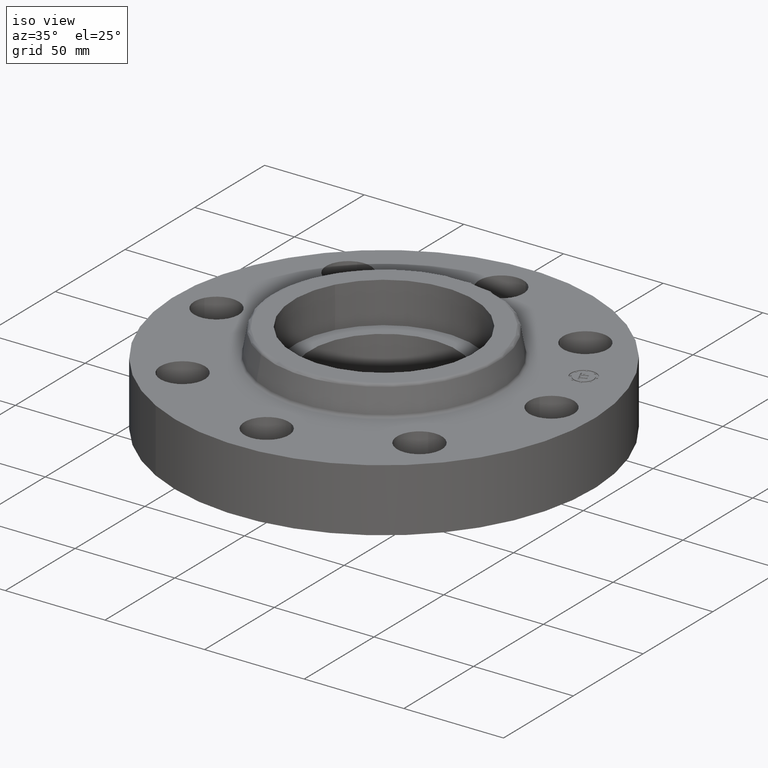
[diagram: clean part render]
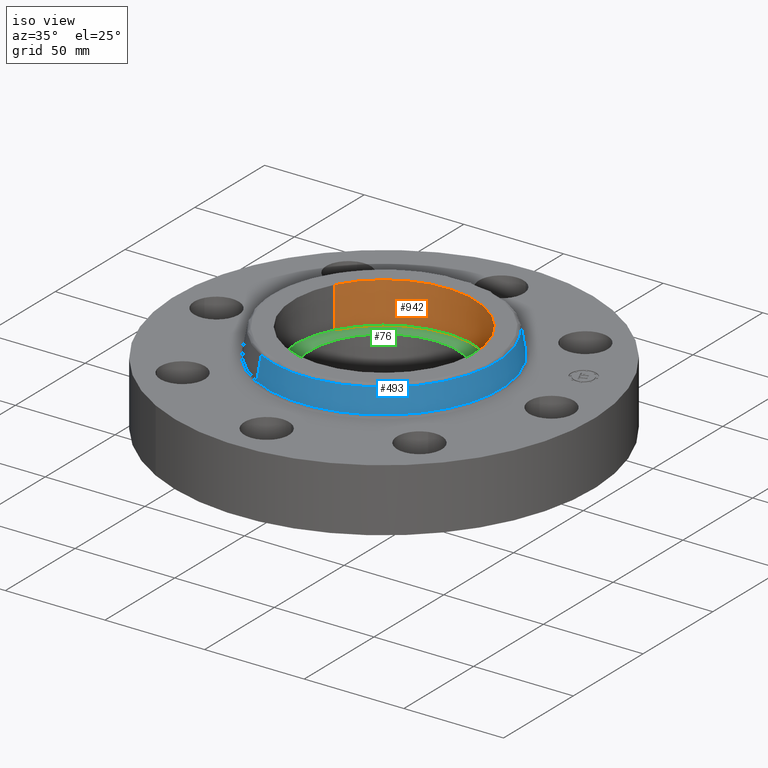
[diagram: same view with three faces highlighted in distinct colors, each labeled with its STEP entity id]
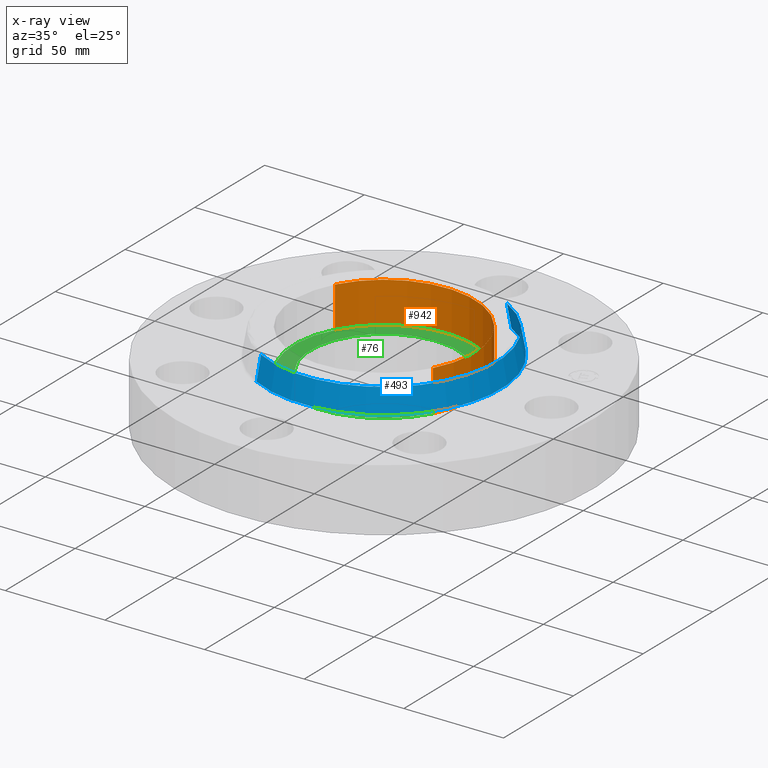
[diagram: x-ray of the same camera — body ghosted, the three highlighted faces saturated]
A machine part, iso view with three faces highlighted in distinct colors.
The next image is the same camera in x-ray (body ghosted, the three faces saturated) — at least one of them is partly hidden behind the body in this view.
Their STEP definitions:

[orange] entity #942 — the highlighted cylindrical surface (partial cylindrical patch) has radius 45.339 mm, axis along (0, 0, -1).
#42=AXIS2_PLACEMENT_3D('Circle Axis2P3D',#40,#41,$) ;
#560=AXIS2_PLACEMENT_3D('Circle Axis2P3D',#558,#559,$) ;
#924=AXIS2_PLACEMENT_3D('Cylinder Axis2P3D',#921,#922,#923) ;
#40=CARTESIAN_POINT('Axis2P3D Location',(1.39870617276E-016,3.84644197508E-016,1.)) ;
#44=CARTESIAN_POINT('Vertex',(-1.56648487298,0.855774586412,1.)) ;
#46=CARTESIAN_POINT('Vertex',(1.56648487298,-0.855774586412,1.)) ;
#558=CARTESIAN_POINT('Axis2P3D Location',(-1.39870617276E-016,8.39223703654E-016,1.81000000001)) ;
#562=CARTESIAN_POINT('Vertex',(-1.56648487298,0.855774586412,1.81000000001)) ;
#564=CARTESIAN_POINT('Vertex',(1.56648487298,-0.855774586412,1.81000000001)) ;
#921=CARTESIAN_POINT('Axis2P3D Location',(1.39870617276E-016,3.84644197508E-016,1.80606299213)) ;
#926=CARTESIAN_POINT('Line Origine',(-1.56648487298,0.855774586412,1.40500000001)) ;
#931=CARTESIAN_POINT('Line Origine',(1.56648487298,-0.855774586412,1.40500000001)) ;
#41=DIRECTION('Axis2P3D Direction',(0.,0.,-0.0393700787402)) ;
#559=DIRECTION('Axis2P3D Direction',(0.,0.,-0.0393700787402)) ;
#922=DIRECTION('Axis2P3D Direction',(0.,0.,-0.0393700787402)) ;
#923=DIRECTION('Axis2P3D XDirection',(0.0345504945626,-0.0188750212049,0.)) ;
#927=DIRECTION('Vector Direction',(0.,0.,-0.0393700787402)) ;
#932=DIRECTION('Vector Direction',(0.,0.,-0.0393700787402)) ;
#928=VECTOR('Line Direction',#927,0.0393700787402) ;
#933=VECTOR('Line Direction',#932,0.0393700787402) ;
#937=ORIENTED_EDGE('',*,*,#566,.F.) ;
#938=ORIENTED_EDGE('',*,*,#930,.F.) ;
#939=ORIENTED_EDGE('',*,*,#48,.T.) ;
#940=ORIENTED_EDGE('',*,*,#935,.T.) ;
#942=ADVANCED_FACE('PartBody',(#941),#925,.F.) ;
#43=CIRCLE('generated circle',#42,1.78500000001) ;
#561=CIRCLE('generated circle',#560,1.78500000001) ;
#925=CYLINDRICAL_SURFACE('generated cylinder',#924,1.78500000001) ;
#48=EDGE_CURVE('',#45,#47,#43,.T.) ;
#566=EDGE_CURVE('',#563,#565,#561,.T.) ;
#930=EDGE_CURVE('',#45,#563,#929,.F.) ;
#935=EDGE_CURVE('',#47,#565,#934,.F.) ;
#936=EDGE_LOOP('',(#937,#938,#939,#940)) ;
#941=FACE_OUTER_BOUND('',#936,.T.) ;
#929=LINE('Line',#926,#928) ;
#934=LINE('Line',#931,#933) ;
#45=VERTEX_POINT('',#44) ;
#47=VERTEX_POINT('',#46) ;
#563=VERTEX_POINT('',#562) ;
#565=VERTEX_POINT('',#564) ;

[blue] entity #493 — the highlighted conical surface has half-angle 10 deg.
#429=AXIS2_PLACEMENT_3D('Circle Axis2P3D',#427,#428,$) ;
#466=AXIS2_PLACEMENT_3D('Cone Axis2P3D',#463,#464,#465) ;
#477=AXIS2_PLACEMENT_3D('Circle Axis2P3D',#475,#476,$) ;
#424=CARTESIAN_POINT('Vertex',(1.10328162249,2.01954346356,1.29958110935)) ;
#427=CARTESIAN_POINT('Axis2P3D Location',(0.,0.,1.29958110935)) ;
#431=CARTESIAN_POINT('Vertex',(-1.10328162249,-2.01954346356,1.29958110935)) ;
#463=CARTESIAN_POINT('Axis2P3D Location',(0.,0.,1.76041889067)) ;
#468=CARTESIAN_POINT('Line Origine',(1.08380301002,1.98388810261,1.53000000001)) ;
#472=CARTESIAN_POINT('Vertex',(1.06432439756,1.94823274165,1.76041889067)) ;
#475=CARTESIAN_POINT('Axis2P3D Location',(0.,0.,1.76041889067)) ;
#479=CARTESIAN_POINT('Vertex',(-1.06432439756,-1.94823274165,1.76041889067)) ;
#482=CARTESIAN_POINT('Line Origine',(-1.08380301002,-1.98388810261,1.53000000001)) ;
#428=DIRECTION('Axis2P3D Direction',(0.,0.,-0.0393700787402)) ;
#464=DIRECTION('Axis2P3D Direction',(0.,0.,-0.0393700787402)) ;
#465=DIRECTION('Axis2P3D XDirection',(-0.0188750212049,-0.0345504945626,0.)) ;
#469=DIRECTION('Vector Direction',(0.00327761303565,0.00599963041829,-0.03877195878)) ;
#476=DIRECTION('Axis2P3D Direction',(0.,0.,-0.0393700787402)) ;
#483=DIRECTION('Vector Direction',(-0.00327761303565,-0.00599963041829,-0.03877195878)) ;
#470=VECTOR('Line Direction',#469,0.0393700787402) ;
#484=VECTOR('Line Direction',#483,0.0393700787402) ;
#488=ORIENTED_EDGE('',*,*,#433,.F.) ;
#489=ORIENTED_EDGE('',*,*,#474,.T.) ;
#490=ORIENTED_EDGE('',*,*,#481,.T.) ;
#491=ORIENTED_EDGE('',*,*,#486,.F.) ;
#493=ADVANCED_FACE('PartBody',(#492),#467,.T.) ;
#430=CIRCLE('generated circle',#429,2.3012575127) ;
#478=CIRCLE('generated circle',#477,2.21999937812) ;
#467=CONICAL_SURFACE('Cone',#466,2.21999937812,0.174532925199) ;
#433=EDGE_CURVE('',#425,#432,#430,.T.) ;
#474=EDGE_CURVE('',#425,#473,#471,.F.) ;
#481=EDGE_CURVE('',#473,#480,#478,.T.) ;
#486=EDGE_CURVE('',#432,#480,#485,.F.) ;
#487=EDGE_LOOP('',(#488,#489,#490,#491)) ;
#492=FACE_OUTER_BOUND('',#487,.T.) ;
#471=LINE('Line',#468,#470) ;
#485=LINE('Line',#482,#484) ;
#425=VERTEX_POINT('',#424) ;
#432=VERTEX_POINT('',#431) ;
#473=VERTEX_POINT('',#472) ;
#480=VERTEX_POINT('',#479) ;

[green] entity #76 — the highlighted planar face has unit normal (0, 0, -1).
#38=AXIS2_PLACEMENT_3D('Plane Axis2P3D',#35,#36,#37) ;
#42=AXIS2_PLACEMENT_3D('Circle Axis2P3D',#40,#41,$) ;
#51=AXIS2_PLACEMENT_3D('Circle Axis2P3D',#49,#50,$) ;
#60=AXIS2_PLACEMENT_3D('Circle Axis2P3D',#58,#59,$) ;
#69=AXIS2_PLACEMENT_3D('Circle Axis2P3D',#67,#68,$) ;
#35=CARTESIAN_POINT('Axis2P3D Location',(1.39870617276E-016,3.84644197508E-016,1.)) ;
#40=CARTESIAN_POINT('Axis2P3D Location',(1.39870617276E-016,3.84644197508E-016,1.)) ;
#44=CARTESIAN_POINT('Vertex',(-1.56648487298,0.855774586412,1.)) ;
#46=CARTESIAN_POINT('Vertex',(1.56648487298,-0.855774586412,1.)) ;
#49=CARTESIAN_POINT('Axis2P3D Location',(1.39870617276E-016,3.84644197508E-016,1.)) ;
#58=CARTESIAN_POINT('Axis2P3D Location',(-1.39870617276E-016,-3.49676543189E-017,1.)) ;
#62=CARTESIAN_POINT('Vertex',(-0.695167030979,-1.27249471475,1.)) ;
#64=CARTESIAN_POINT('Vertex',(0.695167030979,1.27249471475,1.)) ;
#67=CARTESIAN_POINT('Axis2P3D Location',(-1.39870617276E-016,-2.79741234551E-016,1.)) ;
#36=DIRECTION('Axis2P3D Direction',(0.,0.,-0.0393700787402)) ;
#37=DIRECTION('Axis2P3D XDirection',(0.0393700787402,0.,0.)) ;
#41=DIRECTION('Axis2P3D Direction',(0.,0.,-0.0393700787402)) ;
#50=DIRECTION('Axis2P3D Direction',(0.,0.,-0.0393700787402)) ;
#59=DIRECTION('Axis2P3D Direction',(0.,0.,-0.0393700787402)) ;
#68=DIRECTION('Axis2P3D Direction',(0.,0.,-0.0393700787402)) ;
#55=ORIENTED_EDGE('',*,*,#48,.F.) ;
#56=ORIENTED_EDGE('',*,*,#53,.F.) ;
#73=ORIENTED_EDGE('',*,*,#66,.T.) ;
#74=ORIENTED_EDGE('',*,*,#71,.T.) ;
#75=FACE_BOUND('',#72,.T.) ;
#76=ADVANCED_FACE('PartBody',(#57,#75),#39,.F.) ;
#43=CIRCLE('generated circle',#42,1.78500000001) ;
#52=CIRCLE('generated circle',#51,1.78500000001) ;
#61=CIRCLE('generated circle',#60,1.45000000001) ;
#70=CIRCLE('generated circle',#69,1.45000000001) ;
#48=EDGE_CURVE('',#45,#47,#43,.T.) ;
#53=EDGE_CURVE('',#47,#45,#52,.T.) ;
#66=EDGE_CURVE('',#63,#65,#61,.T.) ;
#71=EDGE_CURVE('',#65,#63,#70,.T.) ;
#54=EDGE_LOOP('',(#55,#56)) ;
#72=EDGE_LOOP('',(#73,#74)) ;
#57=FACE_OUTER_BOUND('',#54,.T.) ;
#39=PLANE('',#38) ;
#45=VERTEX_POINT('',#44) ;
#47=VERTEX_POINT('',#46) ;
#63=VERTEX_POINT('',#62) ;
#65=VERTEX_POINT('',#64) ;